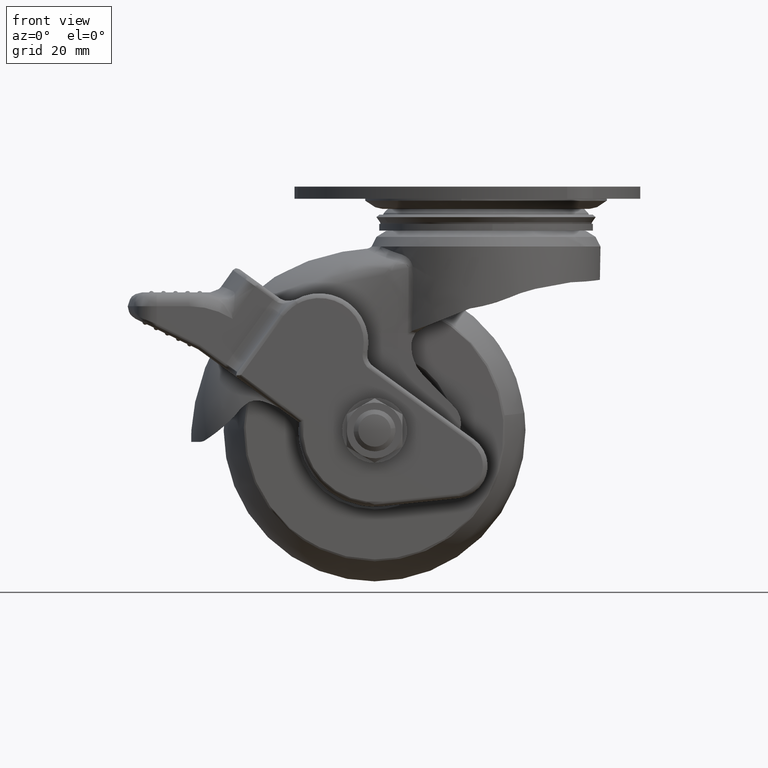
[diagram: clean part render]
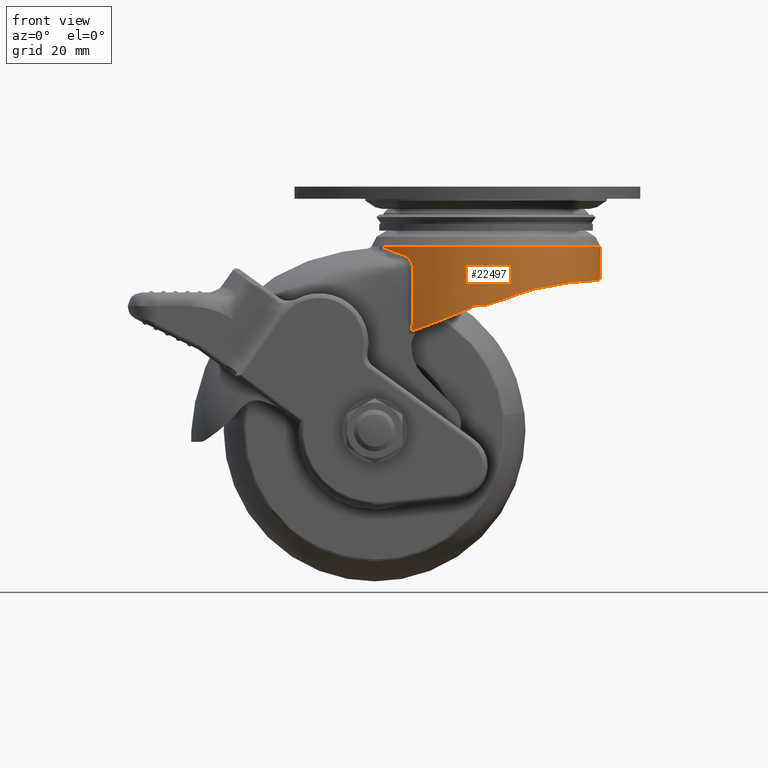
[diagram: same view with one face highlighted and labeled with its STEP entity id]
A machine part, front view. The second image highlights one B-rep face of the part: STEP entity #22497.
In plain terms, the highlighted face is a freeform B-spline surface patch.
Its self-contained STEP definition (entity closure, byte-faithful):
#17725=CARTESIAN_POINT('',(-18.355503654035640,16.475467578936609,-12.893308622287829));
#17726=VERTEX_POINT('',#17725);
#17727=CARTESIAN_POINT('',(20.135062581974019,-14.245869617128990,-12.893308621623859));
#17728=VERTEX_POINT('',#17727);
#17729=CARTESIAN_POINT('',(-18.355503654035648,16.475467578936605,-12.893308622287829));
#17730=CARTESIAN_POINT('',(-8.906340069977214,27.002886959521010,-12.893308622349222));
#17731=CARTESIAN_POINT('',(4.951786800354769,24.162892083164060,-12.893308622349220));
#17732=CARTESIAN_POINT('',(24.665067328895670,20.122979891488338,-12.893308622349219));
#17733=CARTESIAN_POINT('',(24.665067328892501,-3.885469E-012,-12.893308622349220));
#17734=CARTESIAN_POINT('',(24.665067328891265,-7.843176659672960,-12.893308622349217));
#17735=CARTESIAN_POINT('',(20.135062581974019,-14.245869617128996,-12.893308621623859));
#17743=(BOUNDED_CURVE()B_SPLINE_CURVE(2,(#17729,#17730,#17731,#17732,#17733,#17734,#17735),.UNSPECIFIED.,.F.,.U.)B_SPLINE_CURVE_WITH_KNOTS((3,2,2,3),(0.061658515649167,0.250000000000000,0.500000000000000,0.612961417622767),.UNSPECIFIED.)CURVE()GEOMETRIC_REPRESENTATION_ITEM()RATIONAL_B_SPLINE_CURVE((0.916328825182109,0.830373846302969,1.0,0.774842284107388,1.0,0.898263460896265,0.888465351242066))REPRESENTATION_ITEM(''));
#17744=EDGE_CURVE('',#17726,#17728,#17743,.T.);
#17853=CARTESIAN_POINT('',(-22.676814697007249,9.701939060641280,-12.893308622349220));
#17854=VERTEX_POINT('',#17853);
#17855=CARTESIAN_POINT('',(-22.676814697007231,9.701939060641273,-12.893308622349220));
#17856=CARTESIAN_POINT('',(-21.075239071954847,13.445379773425554,-12.893308622349222));
#17857=CARTESIAN_POINT('',(-18.355503654035648,16.475467578936613,-12.893308622287828));
#17865=(BOUNDED_CURVE()B_SPLINE_CURVE(2,(#17855,#17856,#17857),.UNSPECIFIED.,.F.,.U.)B_SPLINE_CURVE_WITH_KNOTS((3,3),(0.0,0.061658515649167),.UNSPECIFIED.)CURVE()GEOMETRIC_REPRESENTATION_ITEM()RATIONAL_B_SPLINE_CURVE((1.0,0.944468437804419,0.916328825182109))REPRESENTATION_ITEM(''));
#17866=EDGE_CURVE('',#17854,#17726,#17865,.T.);
#17868=CARTESIAN_POINT('',(-22.676814697010300,-9.701939060634100,-12.893308622349220));
#17869=VERTEX_POINT('',#17868);
#17883=CARTESIAN_POINT('',(20.135062581974019,-14.245869617128996,-12.893308621623859));
#17884=CARTESIAN_POINT('',(14.503561914729483,-22.205413079059333,-12.893308622349217));
#17885=CARTESIAN_POINT('',(4.951786800347135,-24.162892083165630,-12.893308622349220));
#17886=CARTESIAN_POINT('',(-14.761493728195033,-28.202804274835124,-12.893308622349219));
#17887=CARTESIAN_POINT('',(-22.676814697010300,-9.701939060634116,-12.893308622349220));
#17895=(BOUNDED_CURVE()B_SPLINE_CURVE(2,(#17883,#17884,#17885,#17886,#17887),.UNSPECIFIED.,.F.,.U.)B_SPLINE_CURVE_WITH_KNOTS((3,2,3),(0.612961417622767,0.750000000000000,1.0),.UNSPECIFIED.)CURVE()GEOMETRIC_REPRESENTATION_ITEM()RATIONAL_B_SPLINE_CURVE((0.888465351242066,0.876578823211123,1.0,0.774842284107388,1.0))REPRESENTATION_ITEM(''));
#17896=EDGE_CURVE('',#17728,#17869,#17895,.T.);
#18616=CARTESIAN_POINT('',(-15.958319821000650,18.806849146772549,-31.105121501219500));
#18617=VERTEX_POINT('',#18616);
#18618=CARTESIAN_POINT('',(-15.958319821000650,18.806849146772549,-31.105121501219500));
#18619=CARTESIAN_POINT('',(-15.954545035690360,18.810052194277549,-29.980112130600531));
#18620=CARTESIAN_POINT('',(-15.934398071396849,18.827178842929190,-28.855790552298050));
#18621=CARTESIAN_POINT('',(-15.889995953549050,18.864615285141809,-27.451189454116420));
#18622=CARTESIAN_POINT('',(-15.880313687613230,18.872768853703612,-27.170302598660481));
#18623=CARTESIAN_POINT('',(-15.857568572168001,18.891884130528400,-26.608669533110540));
#18624=CARTESIAN_POINT('',(-15.844762315017830,18.902628407340099,-26.327912559745329));
#18625=CARTESIAN_POINT('',(-15.804442302449210,18.936377124300041,-25.485719436927820));
#18626=CARTESIAN_POINT('',(-15.775029455817981,18.960883512778999,-24.924360745848070));
#18627=CARTESIAN_POINT('',(-15.736541495624239,18.992816694473500,-24.082085373337609));
#18628=CARTESIAN_POINT('',(-15.724649656148610,19.002660700262361,-23.801287468507450));
#18629=CARTESIAN_POINT('',(-15.704306079065550,19.019476624579720,-23.239548239482641));
#18630=CARTESIAN_POINT('',(-15.696054462979291,19.026284121251411,-22.958598626665161));
#18631=CARTESIAN_POINT('',(-15.677131341485371,19.041884532655921,-22.115507620399541));
#18632=CARTESIAN_POINT('',(-15.671791237981051,19.046272991478919,-21.553144916040509));
#18633=CARTESIAN_POINT('',(-15.676458308407881,19.042431839908179,-20.427783678209661));
#18634=CARTESIAN_POINT('',(-15.686479598910930,19.034191583596758,-19.864593521638771));
#18635=CARTESIAN_POINT('',(-15.722486406011379,19.004460335955390,-18.739946187314231));
#18636=CARTESIAN_POINT('',(-15.748467868408049,18.982973583197310,-18.178229749678511));
#18637=CARTESIAN_POINT('',(-15.784799360931400,18.952721788915120,-17.582076942244491));
#18638=CARTESIAN_POINT('',(-15.786968572838971,18.950914960214259,-17.547011596784820));
#18639=CARTESIAN_POINT('',(-15.791371228827680,18.947246482336979,-17.476885851323360));
#18640=CARTESIAN_POINT('',(-15.793453938661330,18.945510532875620,-17.441813956026628));
#18641=CARTESIAN_POINT('',(-15.800857583860090,18.939337033112938,-17.336686468678302));
#18642=CARTESIAN_POINT('',(-15.808303391460599,18.933126003062849,-17.266792980276509));
#18643=CARTESIAN_POINT('',(-15.838317570274199,18.908038581090860,-17.057699925659371));
#18644=CARTESIAN_POINT('',(-15.867990570945420,18.883192107072841,-16.922866765368148));
#18645=CARTESIAN_POINT('',(-15.925569117353740,18.834607117499079,-16.726878959985768));
#18646=CARTESIAN_POINT('',(-15.946946411692840,18.816519218127478,-16.662595859900890));
#18647=CARTESIAN_POINT('',(-15.993899109728170,18.776626071033110,-16.536058783040811));
#18648=CARTESIAN_POINT('',(-16.019596983705011,18.754715451225941,-16.473557130195061));
#18649=CARTESIAN_POINT('',(-16.101515003814779,18.684537250696380,-16.291720524427731));
#18650=CARTESIAN_POINT('',(-16.162632076349379,18.631764970130639,-16.177492578963101));
#18651=CARTESIAN_POINT('',(-16.295603724708322,18.515578327043880,-15.960981376364471));
#18652=CARTESIAN_POINT('',(-16.367470651093331,18.452154019977151,-15.858710661690850));
#18653=CARTESIAN_POINT('',(-16.482234189903451,18.349499631764289,-15.713371940290990));
#18654=CARTESIAN_POINT('',(-16.521444615717410,18.314210499660661,-15.666553364472080));
#18655=CARTESIAN_POINT('',(-16.601149276947439,18.241992245930980,-15.576285237753730));
#18656=CARTESIAN_POINT('',(-16.641710816271889,18.205003037358281,-15.532766594942199));
#18657=CARTESIAN_POINT('',(-16.765296927633031,18.091513973199660,-15.406701025460711));
#18658=CARTESIAN_POINT('',(-16.850212392322309,18.012501538411819,-15.328624537333750));
#18659=CARTESIAN_POINT('',(-16.980713429121462,17.889228561527450,-15.219493015683410));
#18660=CARTESIAN_POINT('',(-17.024738019612752,17.847342756612310,-15.184451868439879));
#18661=CARTESIAN_POINT('',(-17.113755353000631,17.762002303402941,-15.116936264643650));
#18662=CARTESIAN_POINT('',(-17.158841759470761,17.718455630944948,-15.084401687752960));
#18663=CARTESIAN_POINT('',(-17.384710265511529,17.498599414220909,-14.929167984445840));
#18664=CARTESIAN_POINT('',(-17.567595191694451,17.315174272158920,-14.827694426242500));
#18665=CARTESIAN_POINT('',(-17.797396415276499,17.076961361320521,-14.724612388657761));
#18666=CARTESIAN_POINT('',(-17.843420598617779,17.028868638483829,-14.705201798230110));
#18667=CARTESIAN_POINT('',(-17.935572635895319,16.931782540194561,-14.668738724376500));
#18668=CARTESIAN_POINT('',(-17.981730264337241,16.882756881114801,-14.651829331662290));
#18669=CARTESIAN_POINT('',(-18.119941847154770,16.734738756974171,-14.602734549463239));
#18670=CARTESIAN_POINT('',(-18.211819075772429,16.634716409533780,-14.572582011442449));
#18671=CARTESIAN_POINT('',(-18.394647192088879,16.432318727217329,-14.515746965077669));
#18672=CARTESIAN_POINT('',(-18.485635820211400,16.329899448212419,-14.489066710196870));
#18673=CARTESIAN_POINT('',(-18.666049868808852,16.123365962520118,-14.437016374384729));
#18674=CARTESIAN_POINT('',(-18.755374742077731,16.019368242287630,-14.411704360611131));
#18675=CARTESIAN_POINT('',(-18.931818399440171,15.810455170184040,-14.359090559805351));
#18676=CARTESIAN_POINT('',(-19.018847245992550,15.705652920360491,-14.331083844895071));
#18677=CARTESIAN_POINT('',(-19.191076800986661,15.494729924714999,-14.275734519453820));
#18678=CARTESIAN_POINT('',(-19.276225339649230,15.388669410777791,-14.248005280212730));
#18679=CARTESIAN_POINT('',(-19.697167310476221,14.855388185011670,-14.109098144395210));
#18680=CARTESIAN_POINT('',(-20.018571001586800,14.419249606333119,-13.997095036793910));
#18681=CARTESIAN_POINT('',(-20.631266898427970,13.528073414981900,-13.772347625593079));
#18682=CARTESIAN_POINT('',(-20.922561273268521,13.073035231540031,-13.659611383462780));
#18683=CARTESIAN_POINT('',(-21.475277574688150,12.143733918727751,-13.435376159992160));
#18684=CARTESIAN_POINT('',(-21.736702102666420,11.669470675341310,-13.323884482218910));
#18685=CARTESIAN_POINT('',(-22.106295689566739,10.943081909371861,-13.159594183436090));
#18686=CARTESIAN_POINT('',(-22.225732794753259,10.698449906893019,-13.105326832404840));
#18687=CARTESIAN_POINT('',(-22.399194532452391,10.327644998738730,-13.024959389839941));
#18688=CARTESIAN_POINT('',(-22.456065866458381,10.203400324150280,-12.998342743892231));
#18689=CARTESIAN_POINT('',(-22.567898001874060,9.953604982648040,-12.945505374062041));
#18690=CARTESIAN_POINT('',(-22.622905216245449,9.827944315673872,-12.919262185716830));
#18691=CARTESIAN_POINT('',(-22.676814697007249,9.701939060641280,-12.893308622349220));
#18692=B_SPLINE_CURVE_WITH_KNOTS('',3,(#18618,#18619,#18620,#18621,#18622,#18623,#18624,#18625,#18626,#18627,#18628,#18629,#18630,#18631,#18632,#18633,#18634,#18635,#18636,#18637,#18638,#18639,#18640,#18641,#18642,#18643,#18644,#18645,#18646,#18647,#18648,#18649,#18650,#18651,#18652,#18653,#18654,#18655,#18656,#18657,#18658,#18659,#18660,#18661,#18662,#18663,#18664,#18665,#18666,#18667,#18668,#18669,#18670,#18671,#18672,#18673,#18674,#18675,#18676,#18677,#18678,#18679,#18680,#18681,#18682,#18683,#18684,#18685,#18686,#18687,#18688,#18689,#18690,#18691),.UNSPECIFIED.,.F.,.U.,(4,2,2,2,2,2,2,2,2,2,2,2,2,2,2,2,2,2,2,2,2,2,2,2,2,2,2,2,2,2,2,2,2,2,2,2,4),(0.0,0.124999999999998,0.156249999999997,0.187499999999997,0.249999999999996,0.281249999999995,0.312499999999995,0.374999999999995,0.437499999999994,0.499999999999994,0.503906249999994,0.507812499999994,0.515624999999995,0.531249999999996,0.539062499999996,0.546874999999996,0.562499999999997,0.578124999999998,0.585937499999998,0.593749999999999,0.609375000000000,0.617187500000000,0.625000000000000,0.656250000000002,0.664062500000002,0.671875000000002,0.687500000000002,0.703125000000002,0.718750000000002,0.734375000000002,0.750000000000002,0.812500000000002,0.875000000000001,0.937500000000001,0.968750000000000,0.984375000000000,1.0),.UNSPECIFIED.);
#18693=EDGE_CURVE('',#18617,#17854,#18692,.T.);
#19428=CARTESIAN_POINT('',(-15.958319820998200,-18.806849146774951,-31.105121501213901));
#19429=VERTEX_POINT('',#19428);
#19443=CARTESIAN_POINT('',(-22.676814697010300,-9.701939060634100,-12.893308622349220));
#19444=CARTESIAN_POINT('',(-22.461673968207180,-10.204797964442720,-12.996883512301659));
#19445=CARTESIAN_POINT('',(-22.229782482550348,-10.700624355539690,-13.104730808143060));
#19446=CARTESIAN_POINT('',(-21.918641515663261,-11.311830785806061,-13.243002201316701));
#19447=CARTESIAN_POINT('',(-21.855348082521051,-11.433642617014440,-13.270830147584091));
#19448=CARTESIAN_POINT('',(-21.726616622987819,-11.676410125525530,-13.326789077869019));
#19449=CARTESIAN_POINT('',(-21.661172386815242,-11.797372566508050,-13.354922072419869));
#19450=CARTESIAN_POINT('',(-21.462199879200870,-12.157914784457221,-13.439459475811381));
#19451=CARTESIAN_POINT('',(-21.325843881504291,-12.395511882054040,-13.496083577990129));
#19452=CARTESIAN_POINT('',(-20.905731336549579,-13.100194142582639,-13.666261751977910));
#19453=CARTESIAN_POINT('',(-20.610941811296890,-13.559186165626301,-13.780092765411950));
#19454=CARTESIAN_POINT('',(-19.992038287204629,-14.456170203263440,-14.006515346111961));
#19455=CARTESIAN_POINT('',(-19.667921265170680,-14.894161841102500,-14.119099868094031));
#19456=CARTESIAN_POINT('',(-19.244299376139509,-15.428580304236050,-14.258431551722991));
#19457=CARTESIAN_POINT('',(-19.158650520590069,-15.534809222526169,-14.286230699106049));
#19458=CARTESIAN_POINT('',(-19.028785844302028,-15.693167809062270,-14.327825655394790));
#19459=CARTESIAN_POINT('',(-18.985275683108810,-15.745777913151001,-14.341747631600679));
#19460=CARTESIAN_POINT('',(-18.897747878588540,-15.850720487448481,-14.369238280214359));
#19461=CARTESIAN_POINT('',(-18.853686905514099,-15.903104423404670,-14.382486000849370));
#19462=CARTESIAN_POINT('',(-18.720729676177839,-16.059844404804871,-14.421644511668630));
#19463=CARTESIAN_POINT('',(-18.631063155065480,-16.163782131646130,-14.447007141847481));
#19464=CARTESIAN_POINT('',(-18.450107943158841,-16.370030054130890,-14.499465922637061));
#19465=CARTESIAN_POINT('',(-18.358815881971658,-16.472344962925241,-14.526534361955029));
#19466=CARTESIAN_POINT('',(-18.174928300902820,-16.675018753296371,-14.584571868532599));
#19467=CARTESIAN_POINT('',(-18.082331332993189,-16.775379615252870,-14.615529202434869));
#19468=CARTESIAN_POINT('',(-17.942668921925211,-16.924266856507440,-14.666206584056811));
#19469=CARTESIAN_POINT('',(-17.896013011745751,-16.973592411812209,-14.683986949028970));
#19470=CARTESIAN_POINT('',(-17.802654215635400,-17.071485698597570,-14.722347085306200));
#19471=CARTESIAN_POINT('',(-17.755962966516879,-17.120040094708859,-14.742778905114561));
#19472=CARTESIAN_POINT('',(-17.523872516765518,-17.359452650883309,-14.850701836078001));
#19473=CARTESIAN_POINT('',(-17.341306463838151,-17.541553439512331,-14.955719268714480));
#19474=CARTESIAN_POINT('',(-17.074236171761491,-17.800319397162990,-15.144820782784720));
#19475=CARTESIAN_POINT('',(-16.986357098096260,-17.884163278921850,-15.213159779594751));
#19476=CARTESIAN_POINT('',(-16.856726620119051,-18.006105445694399,-15.324644178399680));
#19477=CARTESIAN_POINT('',(-16.813882983961548,-18.046114064293921,-15.363306614493551));
#19478=CARTESIAN_POINT('',(-16.729036040815750,-18.124796466855731,-15.443880356219189));
#19479=CARTESIAN_POINT('',(-16.687232691322649,-18.163283937957509,-15.485610259181660));
#19480=CARTESIAN_POINT('',(-16.564535382176750,-18.275502777681581,-15.614654724658950));
#19481=CARTESIAN_POINT('',(-16.486032009619329,-18.346287087840000,-15.706034229711470));
#19482=CARTESIAN_POINT('',(-16.337066732340361,-18.479062528026031,-15.901129370227769));
#19483=CARTESIAN_POINT('',(-16.266591159245230,-18.541065419035959,-16.004826248997290));
#19484=CARTESIAN_POINT('',(-16.168324101299412,-18.626667152585089,-16.171281035622389));
#19485=CARTESIAN_POINT('',(-16.136764405727501,-18.654005314346680,-16.228734140951669));
#19486=CARTESIAN_POINT('',(-16.077452133240669,-18.705149362060251,-16.345625119874981));
#19487=CARTESIAN_POINT('',(-16.049565319472791,-18.729072875707029,-16.405271555751121));
#19488=CARTESIAN_POINT('',(-15.971506670647059,-18.795776295842359,-16.587964046562199));
#19489=CARTESIAN_POINT('',(-15.926908153426419,-18.833517153577880,-16.714743459837759));
#19490=CARTESIAN_POINT('',(-15.881809887520861,-18.871507627125009,-16.880208649705889));
#19491=CARTESIAN_POINT('',(-15.873324956656001,-18.878644241153779,-16.913652786518181));
#19492=CARTESIAN_POINT('',(-15.857468015763370,-18.891965532804910,-16.981269047190779));
#19493=CARTESIAN_POINT('',(-15.850086986381170,-18.898157742519111,-17.015502727434558));
#19494=CARTESIAN_POINT('',(-15.829885113198930,-18.915089014711519,-17.118229940352361));
#19495=CARTESIAN_POINT('',(-15.818921918262481,-18.924253693918519,-17.187062247326072));
#19496=CARTESIAN_POINT('',(-15.806195491608770,-18.934882121817271,-17.290824357225080));
#19497=CARTESIAN_POINT('',(-15.802573331915021,-18.937904787258791,-17.325497381822469));
#19498=CARTESIAN_POINT('',(-15.796565388788450,-18.942916448096430,-17.395013999963119));
#19499=CARTESIAN_POINT('',(-15.794370429293410,-18.944746433168749,-17.429883883571492));
#19500=CARTESIAN_POINT('',(-15.787716948387031,-18.950292167679208,-17.534484176901710));
#19501=CARTESIAN_POINT('',(-15.783407933497189,-18.953881131820200,-17.604235333745681));
#19502=CARTESIAN_POINT('',(-15.745763736855590,-18.985214406933050,-18.232153739273411));
#19503=CARTESIAN_POINT('',(-15.720393976733030,-19.006190357562531,-18.791545285224149));
#19504=CARTESIAN_POINT('',(-15.685483443416480,-19.035011632198032,-19.910720497936492));
#19505=CARTESIAN_POINT('',(-15.675927659819200,-19.042868606605310,-20.470890178960619));
#19506=CARTESIAN_POINT('',(-15.672013208763170,-19.046090274612030,-21.590819584764532));
#19507=CARTESIAN_POINT('',(-15.677646671214729,-19.041460507659071,-22.150635789812611));
#19508=CARTESIAN_POINT('',(-15.696911494955630,-19.025577129923779,-22.990148071236050));
#19509=CARTESIAN_POINT('',(-15.705294844781330,-19.018660232584079,-23.269947028041020));
#19510=CARTESIAN_POINT('',(-15.725794910519490,-19.001713018469399,-23.829471481308790));
#19511=CARTESIAN_POINT('',(-15.737724268374800,-18.991836650262240,-24.109156246243639));
#19512=CARTESIAN_POINT('',(-15.776228524217400,-18.959885878501971,-24.948053447673161));
#19513=CARTESIAN_POINT('',(-15.805524673462880,-18.935473318769620,-25.507127364745941));
#19514=CARTESIAN_POINT('',(-15.845594948854860,-18.901930337223380,-26.345935769036849));
#19515=CARTESIAN_POINT('',(-15.858305534751070,-18.891265409816590,-26.625571595483379));
#19516=CARTESIAN_POINT('',(-15.880853089839389,-18.872314864811582,-27.184992277272531));
#19517=CARTESIAN_POINT('',(-15.890453850995190,-18.864229530302701,-27.464789503348278));
#19518=CARTESIAN_POINT('',(-15.934541828179020,-18.827056366964229,-28.863979001806140));
#19519=CARTESIAN_POINT('',(-15.954558497074091,-18.810040771786479,-29.984124062839658));
#19520=CARTESIAN_POINT('',(-15.958319820998200,-18.806849146774951,-31.105121501213901));
#19521=B_SPLINE_CURVE_WITH_KNOTS('',3,(#19443,#19444,#19445,#19446,#19447,#19448,#19449,#19450,#19451,#19452,#19453,#19454,#19455,#19456,#19457,#19458,#19459,#19460,#19461,#19462,#19463,#19464,#19465,#19466,#19467,#19468,#19469,#19470,#19471,#19472,#19473,#19474,#19475,#19476,#19477,#19478,#19479,#19480,#19481,#19482,#19483,#19484,#19485,#19486,#19487,#19488,#19489,#19490,#19491,#19492,#19493,#19494,#19495,#19496,#19497,#19498,#19499,#19500,#19501,#19502,#19503,#19504,#19505,#19506,#19507,#19508,#19509,#19510,#19511,#19512,#19513,#19514,#19515,#19516,#19517,#19518,#19519,#19520),.UNSPECIFIED.,.F.,.U.,(4,2,2,2,2,2,2,2,2,2,2,2,2,2,2,2,2,2,2,2,2,2,2,2,2,2,2,2,2,2,2,2,2,2,2,2,2,2,4),(0.0,0.062500000000003,0.078125000000004,0.093750000000005,0.125000000000006,0.187500000000009,0.250000000000012,0.265625000000013,0.273437500000013,0.281250000000014,0.296875000000014,0.312500000000015,0.328125000000017,0.335937500000017,0.343750000000018,0.375000000000019,0.390625000000020,0.398437500000020,0.406250000000021,0.421875000000021,0.437500000000022,0.445312500000022,0.453125000000023,0.468750000000023,0.472656250000023,0.476562500000023,0.484375000000023,0.488281250000023,0.492187500000023,0.500000000000023,0.562500000000020,0.625000000000016,0.687500000000013,0.718750000000012,0.750000000000010,0.812500000000007,0.843750000000006,0.875000000000004,1.0),.UNSPECIFIED.);
#19522=EDGE_CURVE('',#17869,#19429,#19521,.T.);
#20638=CARTESIAN_POINT('',(-0.000046972783371,24.665067328847801,-25.529040999999999));
#20639=VERTEX_POINT('',#20638);
#20647=CARTESIAN_POINT('',(-2.848779798229790,24.500000000000000,-25.529040999999999));
#20648=VERTEX_POINT('',#20647);
#20654=CARTESIAN_POINT('',(-0.000046972783370,24.665067328847769,-25.529040999999999));
#20655=CARTESIAN_POINT('',(-1.429195568707429,24.665064607140732,-25.529041000000003));
#20656=CARTESIAN_POINT('',(-2.848779798229786,24.499999999999961,-25.529040999999999));
#20664=(BOUNDED_CURVE()B_SPLINE_CURVE(2,(#20654,#20655,#20656),.UNSPECIFIED.,.F.,.U.)CURVE()GEOMETRIC_REPRESENTATION_ITEM()QUASI_UNIFORM_CURVE()RATIONAL_B_SPLINE_CURVE((1.0,0.998325564958355,1.0))REPRESENTATION_ITEM(''));
#20665=EDGE_CURVE('',#20639,#20648,#20664,.T.);
#20684=CARTESIAN_POINT('',(-3.402650794354995,24.429234820404751,-26.229289917545501));
#20685=VERTEX_POINT('',#20684);
#20686=CARTESIAN_POINT('',(-3.402650794354986,24.429234820404741,-26.229289917545511));
#20687=CARTESIAN_POINT('',(-3.339222658293014,24.438069472785081,-26.186025162956550));
#20688=CARTESIAN_POINT('',(-3.277210487750819,24.446453049942690,-26.140876093430641));
#20689=CARTESIAN_POINT('',(-3.187621259307397,24.458240416827419,-26.068641242007359));
#20690=CARTESIAN_POINT('',(-3.158337277840687,24.462037488579121,-26.043801273426599));
#20691=CARTESIAN_POINT('',(-3.101317545635439,24.469331865304010,-25.992094042114680));
#20692=CARTESIAN_POINT('',(-3.073493151538781,24.472840056645978,-25.965142109658789));
#20693=CARTESIAN_POINT('',(-3.020451583057216,24.479443066073600,-25.908880685713338));
#20694=CARTESIAN_POINT('',(-2.995275304023338,24.482533002774620,-25.879641082893968));
#20695=CARTESIAN_POINT('',(-2.948711192812038,24.488184879247900,-25.818044082554440));
#20696=CARTESIAN_POINT('',(-2.927176339245419,24.490764026860280,-25.785419951712850));
#20697=CARTESIAN_POINT('',(-2.890684925306320,24.495097970879769,-25.717332879950359));
#20698=CARTESIAN_POINT('',(-2.875651122141933,24.496862861315090,-25.681862798940379));
#20699=CARTESIAN_POINT('',(-2.859807989828919,24.498715739217829,-25.625680895584001));
#20700=CARTESIAN_POINT('',(-2.855689859039057,24.499195689318022,-25.606498634425900));
#20701=CARTESIAN_POINT('',(-2.850193209141122,24.499835768124711,-25.568025015026389));
#20702=CARTESIAN_POINT('',(-2.848779798229811,24.500000000000000,-25.548621340629371));
#20703=CARTESIAN_POINT('',(-2.848779798229810,24.500000000000000,-25.529040999999999));
#20704=B_SPLINE_CURVE_WITH_KNOTS('',3,(#20686,#20687,#20688,#20689,#20690,#20691,#20692,#20693,#20694,#20695,#20696,#20697,#20698,#20699,#20700,#20701,#20702,#20703),.UNSPECIFIED.,.F.,.U.,(4,2,2,2,2,2,2,2,4),(0.0,0.250000000000003,0.375000000000005,0.500000000000006,0.625000000000007,0.750000000000008,0.875000000000009,0.937500000000005,1.0),.UNSPECIFIED.);
#20705=EDGE_CURVE('',#20685,#20648,#20704,.T.);
#20734=CARTESIAN_POINT('',(-15.621289834212750,19.087714641997401,-30.938793816019199));
#20735=VERTEX_POINT('',#20734);
#20736=CARTESIAN_POINT('',(-9.951211043517910,22.568538834097549,-28.861414756400752));
#20737=VERTEX_POINT('',#20736);
#20738=CARTESIAN_POINT('',(-15.621289834212750,19.087714641997401,-30.938793816019199));
#20739=CARTESIAN_POINT('',(-15.178586239422071,19.450021041405591,-30.797969016920689));
#20740=CARTESIAN_POINT('',(-14.728869428866080,19.792418854695750,-30.644971775152872));
#20741=CARTESIAN_POINT('',(-13.814981919289890,20.440785536324061,-30.321124265331790));
#20742=CARTESIAN_POINT('',(-13.350813921293559,20.746743013250232,-30.150248724896731));
#20743=CARTESIAN_POINT('',(-12.407218560095229,21.324457920915179,-29.796344809217491));
#20744=CARTESIAN_POINT('',(-11.927795742552920,21.596209800607941,-29.613295312631589));
#20745=CARTESIAN_POINT('',(-10.952398301521390,22.106866817185320,-29.240695104665338));
#20746=CARTESIAN_POINT('',(-10.456431022542100,22.345770728832509,-29.051122440151762));
#20747=CARTESIAN_POINT('',(-9.951211043517889,22.568538834097520,-28.861414756400759));
#20748=B_SPLINE_CURVE_WITH_KNOTS('',3,(#20738,#20739,#20740,#20741,#20742,#20743,#20744,#20745,#20746,#20747),.UNSPECIFIED.,.F.,.U.,(4,2,2,2,4),(0.0,0.250000000000000,0.500000000000000,0.750000000000000,1.0),.UNSPECIFIED.);
#20749=EDGE_CURVE('',#20735,#20737,#20748,.T.);
#20843=CARTESIAN_POINT('',(-15.621289834212750,19.087714641997401,-30.938793816019199));
#20844=CARTESIAN_POINT('',(-15.680561139999471,19.039207302813519,-30.957648097215468));
#20845=CARTESIAN_POINT('',(-15.738380485648650,18.991426674018321,-30.980544585036739));
#20846=CARTESIAN_POINT('',(-15.850856046444880,18.897652500258921,-31.035477822299651));
#20847=CARTESIAN_POINT('',(-15.905519070965299,18.851652571805460,-31.067490738951030));
#20848=CARTESIAN_POINT('',(-15.958319821000650,18.806849146772549,-31.105121501219500));
#20849=B_SPLINE_CURVE_WITH_KNOTS('',3,(#20843,#20844,#20845,#20846,#20847,#20848),.UNSPECIFIED.,.F.,.U.,(4,2,4),(0.0,0.500000000000000,1.0),.UNSPECIFIED.);
#20850=EDGE_CURVE('',#20735,#18617,#20849,.T.);
#20869=CARTESIAN_POINT('',(-9.951211043519020,-22.568538834097051,-28.861414756401199));
#20870=VERTEX_POINT('',#20869);
#20871=CARTESIAN_POINT('',(-15.621289472819250,-19.087714937760001,-30.938793656039500));
#20872=VERTEX_POINT('',#20871);
#20873=CARTESIAN_POINT('',(-9.951211043519015,-22.568538834097019,-28.861414756401182));
#20874=CARTESIAN_POINT('',(-10.454592750211880,-22.346581283563040,-29.050432177691160));
#20875=CARTESIAN_POINT('',(-10.949234769554320,-22.108408275517000,-29.239486297869380));
#20876=CARTESIAN_POINT('',(-11.922905046550690,-21.598884086144391,-29.611427414783140));
#20877=CARTESIAN_POINT('',(-12.401926522829990,-21.327534846054000,-29.794335947682260));
#20878=CARTESIAN_POINT('',(-13.345583179911930,-20.750106835276132,-30.148310657079708));
#20879=CARTESIAN_POINT('',(-13.810214090990231,-20.444034560990090,-30.319398203839611));
#20880=CARTESIAN_POINT('',(-14.725861307719491,-19.794685426036772,-30.643942022431521));
#20881=CARTESIAN_POINT('',(-15.176874993621359,-19.451421501605701,-30.797424660857459));
#20882=CARTESIAN_POINT('',(-15.621289472819250,-19.087714937760001,-30.938793656039500));
#20883=B_SPLINE_CURVE_WITH_KNOTS('',3,(#20873,#20874,#20875,#20876,#20877,#20878,#20879,#20880,#20881,#20882),.UNSPECIFIED.,.F.,.U.,(4,2,2,2,4),(0.0,0.250000000000000,0.500000000000000,0.750000000000000,1.0),.UNSPECIFIED.);
#20884=EDGE_CURVE('',#20870,#20872,#20883,.T.);
#20938=CARTESIAN_POINT('',(-15.958319820998200,-18.806849146774951,-31.105121501213901));
#20939=CARTESIAN_POINT('',(-15.905667183974661,-18.851526892338612,-31.067596298162020));
#20940=CARTESIAN_POINT('',(-15.851078395940920,-18.897465998393582,-31.035600653763961));
#20941=CARTESIAN_POINT('',(-15.738603422741869,-18.991241922959230,-30.980639288472240));
#20942=CARTESIAN_POINT('',(-15.680710563413291,-19.039085017416632,-30.957695609672442));
#20943=CARTESIAN_POINT('',(-15.621289472819250,-19.087714937760001,-30.938793656039500));
#20944=B_SPLINE_CURVE_WITH_KNOTS('',3,(#20938,#20939,#20940,#20941,#20942,#20943),.UNSPECIFIED.,.F.,.U.,(4,2,4),(0.0,0.500000000000000,1.0),.UNSPECIFIED.);
#20945=EDGE_CURVE('',#19429,#20872,#20944,.T.);
#21002=CARTESIAN_POINT('',(-2.848779798229540,-24.500000000000000,-25.529040999999999));
#21003=VERTEX_POINT('',#21002);
#21004=CARTESIAN_POINT('',(-3.402650794354825,-24.429234820404801,-26.229289917545451));
#21005=VERTEX_POINT('',#21004);
#21006=CARTESIAN_POINT('',(-2.848779798229540,-24.500000000000000,-25.529040999999999));
#21007=CARTESIAN_POINT('',(-2.848779798229316,-24.500000000000000,-25.568480558480079));
#21008=CARTESIAN_POINT('',(-2.854503434482624,-24.499336079403669,-25.606777443293900));
#21009=CARTESIAN_POINT('',(-2.875512109013261,-24.496879154291499,-25.681461902483139));
#21010=CARTESIAN_POINT('',(-2.890968080835885,-24.495064623058330,-25.717963173405280));
#21011=CARTESIAN_POINT('',(-2.927642281505448,-24.490708401427611,-25.786185245824591));
#21012=CARTESIAN_POINT('',(-2.948978118502877,-24.488152892393451,-25.818447434592340));
#21013=CARTESIAN_POINT('',(-2.995864644234699,-24.482461049863250,-25.880369509064689));
#21014=CARTESIAN_POINT('',(-3.021387606438177,-24.479327499856950,-25.909929665022389));
#21015=CARTESIAN_POINT('',(-3.100800354509259,-24.469438689913570,-25.993991838846700));
#21016=CARTESIAN_POINT('',(-3.158068365310816,-24.462129124702749,-26.044821910125410));
#21017=CARTESIAN_POINT('',(-3.277220809101078,-24.446451294247240,-26.140875536248480));
#21018=CARTESIAN_POINT('',(-3.339187283203003,-24.438074400040438,-26.186001033371738));
#21019=CARTESIAN_POINT('',(-3.402650794354850,-24.429234820404758,-26.229289917545419));
#21020=B_SPLINE_CURVE_WITH_KNOTS('',3,(#21006,#21007,#21008,#21009,#21010,#21011,#21012,#21013,#21014,#21015,#21016,#21017,#21018,#21019),.UNSPECIFIED.,.F.,.U.,(4,2,2,2,2,2,4),(0.0,0.125000000000002,0.250000000000004,0.375000000000005,0.500000000000007,0.750000000000004,1.0),.UNSPECIFIED.);
#21021=EDGE_CURVE('',#21003,#21005,#21020,.T.);
#21048=CARTESIAN_POINT('',(-0.000046972783347,-24.665067328892501,-25.529040999999999));
#21049=VERTEX_POINT('',#21048);
#21055=CARTESIAN_POINT('',(-2.848779798229547,-24.499999999999989,-25.529040999999999));
#21056=CARTESIAN_POINT('',(-1.429195568707303,-24.665064607140732,-25.529041000000003));
#21057=CARTESIAN_POINT('',(-0.000046972783347,-24.665067328892501,-25.529040999999999));
#21065=(BOUNDED_CURVE()B_SPLINE_CURVE(2,(#21055,#21056,#21057),.UNSPECIFIED.,.F.,.U.)CURVE()GEOMETRIC_REPRESENTATION_ITEM()QUASI_UNIFORM_CURVE()RATIONAL_B_SPLINE_CURVE((1.0,0.998325564958355,1.0))REPRESENTATION_ITEM(''));
#21066=EDGE_CURVE('',#21003,#21049,#21065,.T.);
#21076=CARTESIAN_POINT('',(23.353359000000101,7.936382661887899,-20.226372399278102));
#21077=VERTEX_POINT('',#21076);
#21078=CARTESIAN_POINT('',(23.353359000000101,-7.936382661887899,-20.226372399278102));
#21079=VERTEX_POINT('',#21078);
#21080=CARTESIAN_POINT('',(23.353359000000111,7.936382661887934,-20.226372399278109));
#21081=CARTESIAN_POINT('',(26.050451514867682,1.561251E-014,-19.836835546128622));
#21082=CARTESIAN_POINT('',(23.353359000000118,-7.936382661887897,-20.226372399278109));
#21090=(BOUNDED_CURVE()B_SPLINE_CURVE(2,(#21080,#21081,#21082),.UNSPECIFIED.,.F.,.U.)CURVE()GEOMETRIC_REPRESENTATION_ITEM()QUASI_UNIFORM_CURVE()RATIONAL_B_SPLINE_CURVE((1.0,0.946819187176681,1.0))REPRESENTATION_ITEM(''));
#21091=EDGE_CURVE('',#21077,#21079,#21090,.T.);
#21107=CARTESIAN_POINT('',(21.431923999999999,12.208119429176000,-20.425798399278200));
#21108=VERTEX_POINT('',#21107);
#21114=CARTESIAN_POINT('',(21.431923999999999,12.208119429176000,-20.425798399278221));
#21115=CARTESIAN_POINT('',(22.596366181264212,10.163886779255630,-20.304940786899500));
#21116=CARTESIAN_POINT('',(23.353359000000101,7.936382661887903,-20.226372399278109));
#21124=(BOUNDED_CURVE()B_SPLINE_CURVE(2,(#21114,#21115,#21116),.UNSPECIFIED.,.F.,.U.)CURVE()GEOMETRIC_REPRESENTATION_ITEM()QUASI_UNIFORM_CURVE()RATIONAL_B_SPLINE_CURVE((1.0,0.995481885286419,1.0))REPRESENTATION_ITEM(''));
#21125=EDGE_CURVE('',#21108,#21077,#21124,.T.);
#21128=CARTESIAN_POINT('',(21.431923999999999,-12.208119429176000,-20.425798399278200));
#21129=VERTEX_POINT('',#21128);
#21130=CARTESIAN_POINT('',(23.353359000000101,-7.936382661887897,-20.226372399278109));
#21131=CARTESIAN_POINT('',(22.596366181264223,-10.163886779255598,-20.304940786899497));
#21132=CARTESIAN_POINT('',(21.431924000000009,-12.208119429175991,-20.425798399278221));
#21140=(BOUNDED_CURVE()B_SPLINE_CURVE(2,(#21130,#21131,#21132),.UNSPECIFIED.,.F.,.U.)CURVE()GEOMETRIC_REPRESENTATION_ITEM()QUASI_UNIFORM_CURVE()RATIONAL_B_SPLINE_CURVE((1.0,0.995481885286446,1.0))REPRESENTATION_ITEM(''));
#21141=EDGE_CURVE('',#21079,#21129,#21140,.T.);
#21158=CARTESIAN_POINT('',(18.271222999999999,-16.568885189507299,-20.597744399278149));
#21159=VERTEX_POINT('',#21158);
#21160=CARTESIAN_POINT('',(21.431924000000020,-12.208119429176000,-20.425798399278221));
#21161=CARTESIAN_POINT('',(20.091054239605832,-14.562078936648311,-20.498743354153930));
#21162=CARTESIAN_POINT('',(18.271222999999999,-16.568885189507299,-20.597744399278149));
#21170=(BOUNDED_CURVE()B_SPLINE_CURVE(2,(#21160,#21161,#21162),.UNSPECIFIED.,.F.,.U.)CURVE()GEOMETRIC_REPRESENTATION_ITEM()QUASI_UNIFORM_CURVE()RATIONAL_B_SPLINE_CURVE((1.0,0.994022248391885,1.0))REPRESENTATION_ITEM(''));
#21171=EDGE_CURVE('',#21129,#21159,#21170,.T.);
#21188=CARTESIAN_POINT('',(10.608846700321600,-22.266969230930400,-22.014955640055749));
#21189=VERTEX_POINT('',#21188);
#21190=CARTESIAN_POINT('',(18.271222999999999,-16.568885189507299,-20.597744399278149));
#21191=CARTESIAN_POINT('',(15.002155391419643,-20.173826777024175,-21.202381730391110));
#21192=CARTESIAN_POINT('',(10.608846700321600,-22.266969230930400,-22.014955640055749));
#21200=(BOUNDED_CURVE()B_SPLINE_CURVE(2,(#21190,#21191,#21192),.UNSPECIFIED.,.F.,.U.)CURVE()GEOMETRIC_REPRESENTATION_ITEM()QUASI_UNIFORM_CURVE()RATIONAL_B_SPLINE_CURVE((1.0,0.981086479477984,1.0))REPRESENTATION_ITEM(''));
#21201=EDGE_CURVE('',#21159,#21189,#21200,.T.);
#21225=CARTESIAN_POINT('',(10.608846700321600,22.266969230930201,-22.014955640055749));
#21226=VERTEX_POINT('',#21225);
#21233=CARTESIAN_POINT('',(7.363025474457230,23.540420603746551,-22.956051600782050));
#21234=VERTEX_POINT('',#21233);
#21240=CARTESIAN_POINT('',(10.608846700321600,22.266969230930201,-22.014955640055749));
#21241=CARTESIAN_POINT('',(10.068991795955650,22.524177004194819,-22.114805662166440));
#21242=CARTESIAN_POINT('',(9.527820255314561,22.757946227562019,-22.241830732556210));
#21243=CARTESIAN_POINT('',(8.445099307085938,23.181539487437909,-22.554042349671668));
#21244=CARTESIAN_POINT('',(7.903542272031536,23.371356549331210,-22.739212048541781));
#21245=CARTESIAN_POINT('',(7.363025474457230,23.540420603746551,-22.956051600782050));
#21246=B_SPLINE_CURVE_WITH_KNOTS('',3,(#21240,#21241,#21242,#21243,#21244,#21245),.UNSPECIFIED.,.F.,.U.,(4,2,4),(0.0,0.500000000000000,1.0),.UNSPECIFIED.);
#21247=EDGE_CURVE('',#21226,#21234,#21246,.T.);
#21258=CARTESIAN_POINT('',(7.363025474457230,-23.540420603746551,-22.956051600782050));
#21259=VERTEX_POINT('',#21258);
#21265=CARTESIAN_POINT('',(5.009995439388019,-24.150890087864649,-23.900018815795349));
#21266=VERTEX_POINT('',#21265);
#21267=CARTESIAN_POINT('',(7.363025474457238,-23.540420603746529,-22.956051600782050));
#21268=CARTESIAN_POINT('',(6.201570359982474,-23.903703135493444,-23.421993613180319));
#21269=CARTESIAN_POINT('',(5.009995439388019,-24.150890087864649,-23.900018815795349));
#21277=(BOUNDED_CURVE()B_SPLINE_CURVE(2,(#21267,#21268,#21269),.UNSPECIFIED.,.F.,.U.)CURVE()GEOMETRIC_REPRESENTATION_ITEM()QUASI_UNIFORM_CURVE()RATIONAL_B_SPLINE_CURVE((1.0,0.998785061187989,1.0))REPRESENTATION_ITEM(''));
#21278=EDGE_CURVE('',#21259,#21266,#21277,.T.);
#22331=CARTESIAN_POINT('',(-22.992787405325100,-8.927332954041955,-12.438013299633971));
#22332=CARTESIAN_POINT('',(-22.992787405325100,-8.927332954041955,-31.571799206259140));
#22333=CARTESIAN_POINT('',(-15.534994557805943,-28.135247158510424,-12.438013299633967));
#22334=CARTESIAN_POINT('',(-15.534994557805943,-28.135247158510424,-31.571799206259133));
#22335=CARTESIAN_POINT('',(4.693440836986326,-24.214399836636652,-12.438013299633971));
#22336=CARTESIAN_POINT('',(4.693440836986326,-24.214399836636652,-31.571799206259140));
#22337=CARTESIAN_POINT('',(24.921876231778590,-20.293552514762872,-12.438013299633967));
#22338=CARTESIAN_POINT('',(24.921876231778590,-20.293552514762872,-31.571799206259133));
#22339=CARTESIAN_POINT('',(24.663122411335220,0.309740637137274,-12.438013299633971));
#22340=CARTESIAN_POINT('',(24.663122411335220,0.309740637137274,-31.571799206259140));
#22341=CARTESIAN_POINT('',(24.404368590891846,20.913033789037414,-12.438013299633967));
#22342=CARTESIAN_POINT('',(24.404368590891846,20.913033789037414,-31.571799206259133));
#22343=CARTESIAN_POINT('',(4.083846051670385,24.324632530935720,-12.438013299633971));
#22344=CARTESIAN_POINT('',(4.083846051670385,24.324632530935720,-31.571799206259140));
#22345=CARTESIAN_POINT('',(-16.236676487551080,27.736231272834015,-12.438013299633967));
#22346=CARTESIAN_POINT('',(-16.236676487551080,27.736231272834015,-31.571799206259133));
#22347=CARTESIAN_POINT('',(-23.209734320128060,8.347082072668826,-12.438013299633971));
#22348=CARTESIAN_POINT('',(-23.209734320128060,8.347082072668826,-31.571799206259140));
#22356=(BOUNDED_SURFACE()B_SPLINE_SURFACE(1,2,((#22331,#22333,#22335,#22337,#22339,#22341,#22343,#22345,#22347),(#22332,#22334,#22336,#22338,#22340,#22342,#22344,#22346,#22348)),.UNSPECIFIED.,.F.,.F.,.U.)B_SPLINE_SURFACE_WITH_KNOTS((2,2),(3,2,2,2,3),(0.0,19.133785906625171),(0.0,35.787570891492351,71.575141782984701,107.362712674477090,143.150283565969400),.UNSPECIFIED.)GEOMETRIC_REPRESENTATION_ITEM()RATIONAL_B_SPLINE_SURFACE(((1.0,0.767444963979125,1.0,0.767444963979125,1.0,0.767444963979125,1.0,0.767444963979125,1.0),(1.0,0.767444963979125,1.0,0.767444963979125,1.0,0.767444963979125,1.0,0.767444963979125,1.0)))REPRESENTATION_ITEM('')SURFACE());
#22357=ORIENTED_EDGE('',*,*,#20850,.T.);
#22358=ORIENTED_EDGE('',*,*,#18693,.T.);
#22359=ORIENTED_EDGE('',*,*,#17866,.T.);
#22360=ORIENTED_EDGE('',*,*,#17744,.T.);
#22361=ORIENTED_EDGE('',*,*,#17896,.T.);
#22362=ORIENTED_EDGE('',*,*,#19522,.T.);
#22363=ORIENTED_EDGE('',*,*,#20945,.T.);
#22364=ORIENTED_EDGE('',*,*,#20884,.F.);
#22365=CARTESIAN_POINT('',(-3.432260999999900,-24.425092236605401,-26.234016399278101));
#22366=VERTEX_POINT('',#22365);
#22367=CARTESIAN_POINT('',(-3.432260999999900,-24.425092236605401,-26.234016399278101));
#22368=CARTESIAN_POINT('',(-6.820506438178804,-23.948969462401077,-27.599615220924452));
#22369=CARTESIAN_POINT('',(-9.951211043518939,-22.568538834097058,-28.861414756401160));
#22377=(BOUNDED_CURVE()B_SPLINE_CURVE(2,(#22367,#22368,#22369),.UNSPECIFIED.,.F.,.U.)CURVE()GEOMETRIC_REPRESENTATION_ITEM()QUASI_UNIFORM_CURVE()RATIONAL_B_SPLINE_CURVE((1.0,0.990515072701565,1.0))REPRESENTATION_ITEM(''));
#22378=EDGE_CURVE('',#22366,#20870,#22377,.T.);
#22379=ORIENTED_EDGE('',*,*,#22378,.F.);
#22380=CARTESIAN_POINT('',(-3.402650794354825,-24.429234820404801,-26.229289917545451));
#22381=CARTESIAN_POINT('',(-3.412519645877926,-24.427860212743958,-26.230869078945052));
#22382=CARTESIAN_POINT('',(-3.422389714257287,-24.426479353617310,-26.232444573216579));
#22383=CARTESIAN_POINT('',(-3.432260999999900,-24.425092236605401,-26.234016399278101));
#22384=B_SPLINE_CURVE_WITH_KNOTS('',3,(#22380,#22381,#22382,#22383),.UNSPECIFIED.,.F.,.U.,(4,4),(0.996615986797397,1.0),.UNSPECIFIED.);
#22385=EDGE_CURVE('',#21005,#22366,#22384,.T.);
#22386=ORIENTED_EDGE('',*,*,#22385,.F.);
#22387=ORIENTED_EDGE('',*,*,#21021,.F.);
#22388=ORIENTED_EDGE('',*,*,#21066,.T.);
#22389=CARTESIAN_POINT('',(5.009995439388019,-24.150890087864649,-23.900018815795349));
#22390=CARTESIAN_POINT('',(4.331752994845407,-24.291586910426989,-24.172109426814590));
#22391=CARTESIAN_POINT('',(3.647211911462826,-24.403840284479308,-24.424758952978650));
#22392=CARTESIAN_POINT('',(2.265581060843928,-24.570644370861420,-24.891447440729650));
#22393=CARTESIAN_POINT('',(1.568491410057243,-24.625198349285089,-25.105486439817700));
#22394=CARTESIAN_POINT('',(0.577762497333168,-24.659965583525221,-25.379696697303309));
#22395=CARTESIAN_POINT('',(0.289389084087121,-24.665066146856951,-25.455991139224022));
#22396=CARTESIAN_POINT('',(-0.000046972783347,-24.665067328892501,-25.529040999999999));
#22397=B_SPLINE_CURVE_WITH_KNOTS('',3,(#22389,#22390,#22391,#22392,#22393,#22394,#22395,#22396),.UNSPECIFIED.,.F.,.U.,(4,2,2,4),(0.0,0.250000000000000,0.500000000000000,0.602116480057934),.UNSPECIFIED.);
#22398=EDGE_CURVE('',#21266,#21049,#22397,.T.);
#22399=ORIENTED_EDGE('',*,*,#22398,.F.);
#22400=ORIENTED_EDGE('',*,*,#21278,.F.);
#22401=CARTESIAN_POINT('',(7.363025474457230,-23.540420603746551,-22.956051600782050));
#22402=CARTESIAN_POINT('',(7.903542272031527,-23.371356549331232,-22.739212048541791));
#22403=CARTESIAN_POINT('',(8.445099307085913,-23.181539487437920,-22.554042349671679));
#22404=CARTESIAN_POINT('',(9.527820255314513,-22.757946227562041,-22.241830732556220));
#22405=CARTESIAN_POINT('',(10.068991795955659,-22.524177004194812,-22.114805662166429));
#22406=CARTESIAN_POINT('',(10.608846700321600,-22.266969230930400,-22.014955640055749));
#22407=B_SPLINE_CURVE_WITH_KNOTS('',3,(#22401,#22402,#22403,#22404,#22405,#22406),.UNSPECIFIED.,.F.,.U.,(4,2,4),(0.0,0.500000000000000,1.0),.UNSPECIFIED.);
#22408=EDGE_CURVE('',#21259,#21189,#22407,.T.);
#22409=ORIENTED_EDGE('',*,*,#22408,.T.);
#22410=ORIENTED_EDGE('',*,*,#21201,.F.);
#22411=ORIENTED_EDGE('',*,*,#21171,.F.);
#22412=ORIENTED_EDGE('',*,*,#21141,.F.);
#22413=ORIENTED_EDGE('',*,*,#21091,.F.);
#22414=ORIENTED_EDGE('',*,*,#21125,.F.);
#22415=CARTESIAN_POINT('',(18.271222999999999,16.568885189507299,-20.597744399278149));
#22416=VERTEX_POINT('',#22415);
#22417=CARTESIAN_POINT('',(18.271222999999932,16.568885189507309,-20.597744399278131));
#22418=CARTESIAN_POINT('',(20.091054239605793,14.562078936648385,-20.498743354153934));
#22419=CARTESIAN_POINT('',(21.431923999999999,12.208119429176021,-20.425798399278221));
#22427=(BOUNDED_CURVE()B_SPLINE_CURVE(2,(#22417,#22418,#22419),.UNSPECIFIED.,.F.,.U.)CURVE()GEOMETRIC_REPRESENTATION_ITEM()QUASI_UNIFORM_CURVE()RATIONAL_B_SPLINE_CURVE((1.0,0.994022248391864,1.0))REPRESENTATION_ITEM(''));
#22428=EDGE_CURVE('',#22416,#21108,#22427,.T.);
#22429=ORIENTED_EDGE('',*,*,#22428,.F.);
#22430=CARTESIAN_POINT('',(10.608846700321600,22.266969230930201,-22.014955640055749));
#22431=CARTESIAN_POINT('',(15.002155391419569,20.173826777024207,-21.202381730391128));
#22432=CARTESIAN_POINT('',(18.271222999999999,16.568885189507299,-20.597744399278149));
#22440=(BOUNDED_CURVE()B_SPLINE_CURVE(2,(#22430,#22431,#22432),.UNSPECIFIED.,.F.,.U.)CURVE()GEOMETRIC_REPRESENTATION_ITEM()QUASI_UNIFORM_CURVE()RATIONAL_B_SPLINE_CURVE((1.0,0.981086479477989,1.0))REPRESENTATION_ITEM(''));
#22441=EDGE_CURVE('',#21226,#22416,#22440,.T.);
#22442=ORIENTED_EDGE('',*,*,#22441,.F.);
#22443=ORIENTED_EDGE('',*,*,#21247,.T.);
#22444=CARTESIAN_POINT('',(5.009995439388019,24.150890087864401,-23.900018815795349));
#22445=VERTEX_POINT('',#22444);
#22446=CARTESIAN_POINT('',(5.009995439388019,24.150890087864401,-23.900018815795349));
#22447=CARTESIAN_POINT('',(6.201570359982415,23.903703135493458,-23.421993613180344));
#22448=CARTESIAN_POINT('',(7.363025474457155,23.540420603746551,-22.956051600782079));
#22456=(BOUNDED_CURVE()B_SPLINE_CURVE(2,(#22446,#22447,#22448),.UNSPECIFIED.,.F.,.U.)CURVE()GEOMETRIC_REPRESENTATION_ITEM()QUASI_UNIFORM_CURVE()RATIONAL_B_SPLINE_CURVE((1.0,0.998785061187933,1.0))REPRESENTATION_ITEM(''));
#22457=EDGE_CURVE('',#22445,#21234,#22456,.T.);
#22458=ORIENTED_EDGE('',*,*,#22457,.F.);
#22459=CARTESIAN_POINT('',(-0.000046972783371,24.665067328847801,-25.529040999999999));
#22460=CARTESIAN_POINT('',(0.289389084087105,24.665066146814731,-25.455991139224011));
#22461=CARTESIAN_POINT('',(0.577762497333159,24.659965583485501,-25.379696697303299));
#22462=CARTESIAN_POINT('',(1.568491410057242,24.625198349253981,-25.105486439817678));
#22463=CARTESIAN_POINT('',(2.265581060843929,24.570644370836440,-24.891447440729628));
#22464=CARTESIAN_POINT('',(3.647211911462830,24.403840284466661,-24.424758952978632));
#22465=CARTESIAN_POINT('',(4.331752994845409,24.291586910420541,-24.172109426814600));
#22466=CARTESIAN_POINT('',(5.009995439388019,24.150890087864401,-23.900018815795349));
#22467=B_SPLINE_CURVE_WITH_KNOTS('',3,(#22459,#22460,#22461,#22462,#22463,#22464,#22465,#22466),.UNSPECIFIED.,.F.,.U.,(4,2,2,4),(0.397883519942064,0.500000000000000,0.750000000000000,1.0),.UNSPECIFIED.);
#22468=EDGE_CURVE('',#20639,#22445,#22467,.T.);
#22469=ORIENTED_EDGE('',*,*,#22468,.F.);
#22470=ORIENTED_EDGE('',*,*,#20665,.T.);
#22471=ORIENTED_EDGE('',*,*,#20705,.F.);
#22472=CARTESIAN_POINT('',(-3.432260999999900,24.425092236605401,-26.234016399278101));
#22473=VERTEX_POINT('',#22472);
#22474=CARTESIAN_POINT('',(-3.432260999999900,24.425092236605401,-26.234016399278101));
#22475=CARTESIAN_POINT('',(-3.422389714257343,24.426479353617299,-26.232444573216601));
#22476=CARTESIAN_POINT('',(-3.412519645878039,24.427860212743930,-26.230869078945080));
#22477=CARTESIAN_POINT('',(-3.402650794354995,24.429234820404751,-26.229289917545501));
#22478=B_SPLINE_CURVE_WITH_KNOTS('',3,(#22474,#22475,#22476,#22477),.UNSPECIFIED.,.F.,.U.,(4,4),(0.0,0.003384013202582),.UNSPECIFIED.);
#22479=EDGE_CURVE('',#22473,#20685,#22478,.T.);
#22480=ORIENTED_EDGE('',*,*,#22479,.F.);
#22481=CARTESIAN_POINT('',(-9.951211043517914,22.568538834097509,-28.861414756400752));
#22482=CARTESIAN_POINT('',(-6.820506438178340,23.948969462401109,-27.599615220924260));
#22483=CARTESIAN_POINT('',(-3.432260999999893,24.425092236605369,-26.234016399278119));
#22491=(BOUNDED_CURVE()B_SPLINE_CURVE(2,(#22481,#22482,#22483),.UNSPECIFIED.,.F.,.U.)CURVE()GEOMETRIC_REPRESENTATION_ITEM()QUASI_UNIFORM_CURVE()RATIONAL_B_SPLINE_CURVE((1.0,0.990515072701565,1.0))REPRESENTATION_ITEM(''));
#22492=EDGE_CURVE('',#20737,#22473,#22491,.T.);
#22493=ORIENTED_EDGE('',*,*,#22492,.F.);
#22494=ORIENTED_EDGE('',*,*,#20749,.F.);
#22495=EDGE_LOOP('',(#22357,#22358,#22359,#22360,#22361,#22362,#22363,#22364,#22379,#22386,#22387,#22388,#22399,#22400,#22409,#22410,#22411,#22412,#22413,#22414,#22429,#22442,#22443,#22458,#22469,#22470,#22471,#22480,#22493,#22494));
#22496=FACE_OUTER_BOUND('',#22495,.T.);
#22497=ADVANCED_FACE('',(#22496),#22356,.T.);